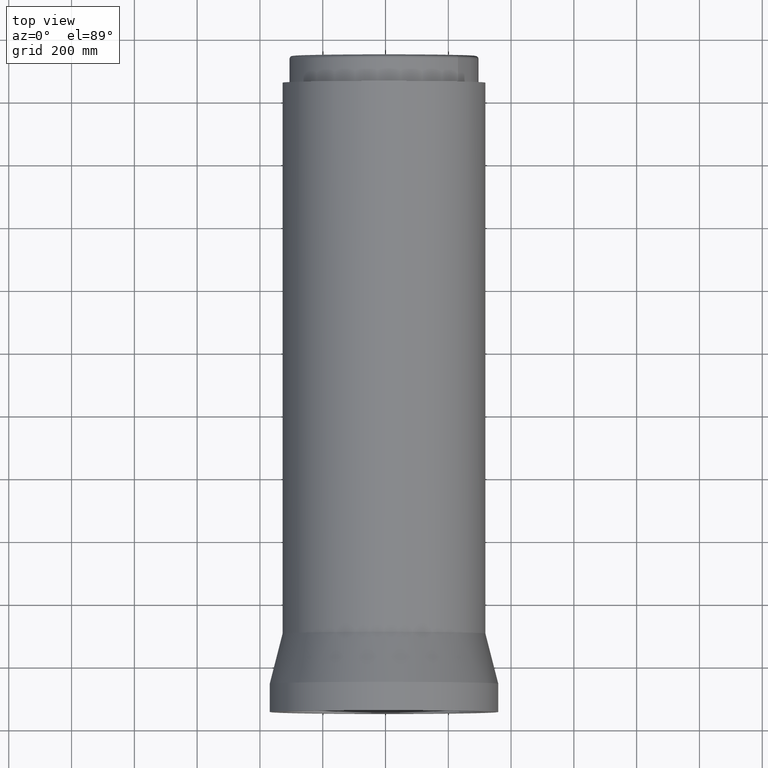
[diagram: clean part render]
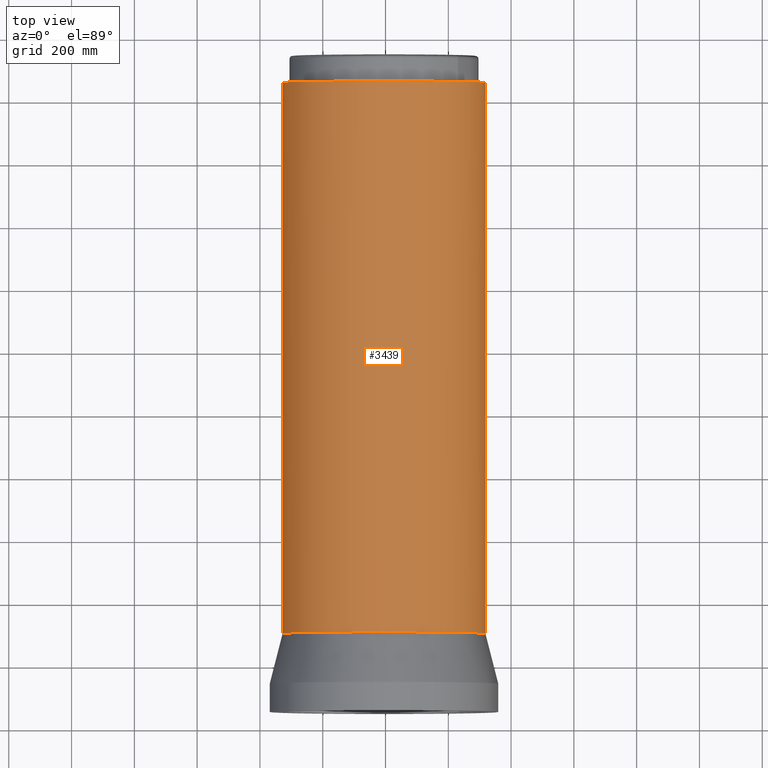
[diagram: same view with one face highlighted and labeled with its STEP entity id]
A machine part, top view. The second image highlights one B-rep face of the part: STEP entity #3439.
In plain terms, the highlighted face is a freeform B-spline surface patch.
Its self-contained STEP definition (entity closure, byte-faithful):
#83 = CARTESIAN_POINT ( 'NONE',  ( -243.5340322323569922, -213.2569484143310206, 1329.999355471835088 ) ) ;
#115 = CARTESIAN_POINT ( 'NONE',  ( 323.0000000000000000, -21.40913129544014382, 744.9987109436699484 ) ) ;
#128 = CARTESIAN_POINT ( 'NONE',  ( -72.32163776227345409, -314.8233503759747691, 159.9979707327578922 ) ) ;
#182 = CARTESIAN_POINT ( 'NONE',  ( 7.709899913104102609, -322.9312209362329895, 159.9997273834592306 ) ) ;
#192 = CARTESIAN_POINT ( 'NONE',  ( -290.3735948414009158, -143.0143971439257768, 159.9980664155050079 ) ) ;
#262 = EDGE_CURVE ( 'NONE', #9677, #22225, #9416, .T. ) ;
#280 = CARTESIAN_POINT ( 'NONE',  ( 306.6660101142015833, -102.0625040144014122, 1915.000000000000000 ) ) ;
#282 = CARTESIAN_POINT ( 'NONE',  ( 113.0296214979986757, -302.6323614580472281, 159.9999999999999432 ) ) ;
#303 = CARTESIAN_POINT ( 'NONE',  ( -243.5340322323569922, -213.2569484143310206, 159.9980664155050079 ) ) ;
#316 = ORIENTED_EDGE ( 'NONE', *, *, #262, .F. ) ;
#346 = B_SPLINE_CURVE_WITH_KNOTS ( 'NONE', 3,
 ( #7447, #14657, #9667, #16739, #11519, #14548 ),
 .UNSPECIFIED., .F., .F.,
 ( 4, 2, 4 ),
 ( 1.867534324542100110, 1.902142855546733680, 1.936751386551367471 ),
 .UNSPECIFIED. ) ;
#397 = CARTESIAN_POINT ( 'NONE',  ( 267.5070683133881744, -181.1870672075436062, 159.9970059069285071 ) ) ;
#406 = CARTESIAN_POINT ( 'NONE',  ( 13.51000980363555648, -322.7233417395834749, 159.9991968739813331 ) ) ;
#416 = CARTESIAN_POINT ( 'NONE',  ( -196.7600408490365851, -257.0226832244281923, 1915.000000000000000 ) ) ;
#430 = VERTEX_POINT ( 'NONE', #13123 ) ;
#450 = CARTESIAN_POINT ( 'NONE',  ( 323.0000000000000000, -9.068911159211503733E-14, 159.9980664155050079 ) ) ;
#521 = CARTESIAN_POINT ( 'NONE',  ( -196.7600408490365851, -257.0226832244281923, 744.9987109436699484 ) ) ;
#677 = VERTEX_POINT ( 'NONE', #2569 ) ;
#683 = EDGE_CURVE ( 'NONE', #7259, #8118, #13577, .T. ) ;
#748 = CARTESIAN_POINT ( 'NONE',  ( -320.8728413778999311, -42.61212307398756849, 1329.999355471835088 ) ) ;
#764 = DIRECTION ( 'NONE',  ( 1.000000000000000000, 5.329070518200752183E-15, 0.0000000000000000000 ) ) ;
#836 = CARTESIAN_POINT ( 'NONE',  ( 321.6395527800746663, -30.59814147421722552, 159.9974290749135832 ) ) ;
#918 = CARTESIAN_POINT ( 'NONE',  ( 0.0000000000000000000, 0.0000000000000000000, 1915.000000000000000 ) ) ;
#950 = AXIS2_PLACEMENT_3D ( 'NONE', #15944, #12339, #17787 ) ;
#954 = CARTESIAN_POINT ( 'NONE',  ( 161.4918332046295291, -279.8362434719057319, 159.9992026377213392 ) ) ;
#1036 = DIRECTION ( 'NONE',  ( 1.000000000000000000, 0.0000000000000000000, 0.0000000000000000000 ) ) ;
#1114 = CARTESIAN_POINT ( 'NONE',  ( -312.0008254233922571, -83.59638175438200847, 159.9991770018956743 ) ) ;
#1239 = CARTESIAN_POINT ( 'NONE',  ( 213.2569484171866634, -243.5340322298582123, 744.9987109436699484 ) ) ;
#1321 = ORIENTED_EDGE ( 'NONE', *, *, #4092, .T. ) ;
#1355 = CARTESIAN_POINT ( 'NONE',  ( 179.1994971339306062, -268.7322017300818402, 744.9987109436697210 ) ) ;
#1398 = ORIENTED_EDGE ( 'NONE', *, *, #17131, .T. ) ;
#1425 = CARTESIAN_POINT ( 'NONE',  ( -228.3954903234047435, -228.3954903231049514, 1915.000000000000000 ) ) ;
#1476 = CARTESIAN_POINT ( 'NONE',  ( 179.1994971339305778, -268.7322017300818970, 1915.000000000000000 ) ) ;
#1573 = CARTESIAN_POINT ( 'NONE',  ( -310.9782097825565756, -87.32327564873503434, 159.9995918787683706 ) ) ;
#1588 = CARTESIAN_POINT ( 'NONE',  ( 42.61212307773088526, -320.8728413774020396, 744.9987109436699484 ) ) ;
#1637 = CARTESIAN_POINT ( 'NONE',  ( -102.2007865244672473, -306.6253833656268739, 1915.000000000000000 ) ) ;
#1703 = CARTESIAN_POINT ( 'NONE',  ( 63.30918256711930070, -316.7355417733130594, 1329.999355471835088 ) ) ;
#1800 = CARTESIAN_POINT ( 'NONE',  ( -168.0858894611942560, -275.9271201318906037, 159.9983108626466333 ) ) ;
#1811 = ORIENTED_EDGE ( 'NONE', *, *, #21593, .T. ) ;
#1816 = CARTESIAN_POINT ( 'NONE',  ( -84.00624204926040761, -312.5982421711733537, 1915.000000000000000 ) ) ;
#1905 = CARTESIAN_POINT ( 'NONE',  ( 282.5798146565998081, -156.4655011245268668, 159.9997980712088008 ) ) ;
#1922 = CARTESIAN_POINT ( 'NONE',  ( -290.3735948414009158, -143.0143971439257768, 744.9987109436699484 ) ) ;
#1952 = CARTESIAN_POINT ( 'NONE',  ( 257.0226832267231885, -196.7600408460376116, 159.9980664155050079 ) ) ;
#1991 = CARTESIAN_POINT ( 'NONE',  ( -239.0201059827531935, -217.3875215555653710, 159.9989982209933430 ) ) ;
#2018 = CARTESIAN_POINT ( 'NONE',  ( -205.7987016950220323, -249.0685278907156430, 159.9974292432548282 ) ) ;
#2026 = CARTESIAN_POINT ( 'NONE',  ( 76.26548870823870629, -313.9608770373025664, 159.9983130880056592 ) ) ;
#2034 = CARTESIAN_POINT ( 'NONE',  ( -228.3954903219077721, -228.3954903246018375, 1915.000000000000000 ) ) ;
#2066 = CARTESIAN_POINT ( 'NONE',  ( 312.5982421721483320, -84.00624204563658282, 744.9987109436700621 ) ) ;
#2123 = EDGE_CURVE ( 'NONE', #3484, #430, #9996, .T. ) ;
#2125 = CIRCLE ( 'NONE', #6935, 323.0000000000000000 ) ;
#2150 = CARTESIAN_POINT ( 'NONE',  ( -143.0143971405650234, -290.3735948430560256, 1329.999355471835088 ) ) ;
#2181 = CARTESIAN_POINT ( 'NONE',  ( 316.7355417755220515, -63.30918255606890455, 744.9987109436700621 ) ) ;
#2257 = CARTESIAN_POINT ( 'NONE',  ( -161.6389534063235658, -280.4417202440712913, 744.9987109436699484 ) ) ;
#2290 = CARTESIAN_POINT ( 'NONE',  ( 316.7355417755220515, -63.30918255606886191, 1329.999355471835315 ) ) ;
#2356 = AXIS2_PLACEMENT_3D ( 'NONE', #3781, #3897, #764 ) ;
#2413 = B_SPLINE_CURVE_WITH_KNOTS ( 'NONE', 3,
 ( #5376, #12457, #3750, #19533, #18018, #3642, #397, #12797, #10723, #19761, #17797, #3970, #1905, #8979 ),
 .UNSPECIFIED., .F., .F.,
 ( 4, 2, 2, 2, 2, 2, 4 ),
 ( 0.7606041070042824925, 0.7836959005980191906, 0.8067876941917559996, 0.8298794877854926977, 0.8414253845823611577, 0.8471983329807953877, 0.8529712813792297288 ),
 .UNSPECIFIED. ) ;
#2450 = CARTESIAN_POINT ( 'NONE',  ( 102.0316606199088767, -306.6750717574353757, 1915.000000000000000 ) ) ;
#2480 = CARTESIAN_POINT ( 'NONE',  ( -316.7355417740493522, -63.30918256343567663, 1915.000000000000000 ) ) ;
#2569 = CARTESIAN_POINT ( 'NONE',  ( -154.7609259190186606, -283.5102393365855278, 1915.000000000000000 ) ) ;
#2664 = EDGE_CURVE ( 'NONE', #6538, #14496, #3614, .T. ) ;
#2802 = CARTESIAN_POINT ( 'NONE',  ( 180.9580275946989047, -267.6607252585141623, 159.9970241236020740 ) ) ;
#2832 = CARTESIAN_POINT ( 'NONE',  ( -306.4515880170426385, -104.1986879638669166, 1329.999355471835088 ) ) ;
#2918 = CARTESIAN_POINT ( 'NONE',  ( 144.6225357798616358, -288.8706769934266845, 1915.000000000000227 ) ) ;
#2920 = CARTESIAN_POINT ( 'NONE',  ( 199.5524037607138723, -254.1009937758297212, 159.9968176868686385 ) ) ;
#3089 = CARTESIAN_POINT ( 'NONE',  ( 228.3954903272961587, -228.3954903192135077, 1915.000000000000000 ) ) ;
#3209 = CARTESIAN_POINT ( 'NONE',  ( 161.6389534128267655, -280.4417202403251395, 744.9987109436698347 ) ) ;
#3253 = CARTESIAN_POINT ( 'NONE',  ( -81.69690136500567235, -312.5036413108439319, 159.9989654859892596 ) ) ;
#3291 = ORIENTED_EDGE ( 'NONE', *, *, #15385, .T. ) ;
#3308 = ORIENTED_EDGE ( 'NONE', *, *, #12882, .T. ) ;
#3324 = CARTESIAN_POINT ( 'NONE',  ( 196.7600408550343616, -257.0226832198385978, 1329.999355471834861 ) ) ;
#3418 = CARTESIAN_POINT ( 'NONE',  ( -110.1515742334396890, -303.6505280211968056, 159.9999999999999147 ) ) ;
#3439 = ADVANCED_FACE ( 'NONE', ( #12733 ), #12458, .T. ) ;
#3440 = CARTESIAN_POINT ( 'NONE',  ( 123.6065425573505223, -298.4125914277910852, 159.9980664155050079 ) ) ;
#3484 = VERTEX_POINT ( 'NONE', #15254 ) ;
#3549 = CARTESIAN_POINT ( 'NONE',  ( 228.3954903272961587, -228.3954903192135077, 1329.999355471835088 ) ) ;
#3597 = ORIENTED_EDGE ( 'NONE', *, *, #16852, .T. ) ;
#3614 = B_SPLINE_CURVE_WITH_KNOTS ( 'NONE', 3,
 ( #7556, #3747, #21491, #17905, #16172, #282, #14543, #12794, #5595, #12678 ),
 .UNSPECIFIED., .F., .F.,
 ( 4, 2, 2, 2, 4 ),
 ( 1.613964769877639815, 1.622608600492521536, 1.631252431107403256, 1.648540092337166918, 1.683115414796693798 ),
 .UNSPECIFIED. ) ;
#3637 = CARTESIAN_POINT ( 'NONE',  ( 309.9045129504303304, -91.03951259182234423, 1915.000000000000000 ) ) ;
#3642 = CARTESIAN_POINT ( 'NONE',  ( 263.1258788166477984, -187.4915359307099720, 159.9966370379043212 ) ) ;
#3660 = CARTESIAN_POINT ( 'NONE',  ( -290.3735948414009158, -143.0143971439258053, 1329.999355471835088 ) ) ;
#3691 = CARTESIAN_POINT ( 'NONE',  ( 323.0000000000000000, -21.40913129544014382, 159.9980664155050079 ) ) ;
#3747 = CARTESIAN_POINT ( 'NONE',  ( 93.82964398256490313, -309.0847855210729449, 159.9999999999999716 ) ) ;
#3750 = CARTESIAN_POINT ( 'NONE',  ( 239.0842331553477607, -217.3170576856385026, 159.9989873894047889 ) ) ;
#3766 = CARTESIAN_POINT ( 'NONE',  ( -179.1994971276800754, -268.7322017342497134, 1329.999355471835088 ) ) ;
#3781 = CARTESIAN_POINT ( 'NONE',  ( 0.0000000000000000000, 0.0000000000000000000, 1915.000000000000000 ) ) ;
#3798 = CARTESIAN_POINT ( 'NONE',  ( 320.8728413788957141, -42.61212306650123338, 159.9980664155050931 ) ) ;
#3880 = CARTESIAN_POINT ( 'NONE',  ( -104.1986879603200720, -306.4515880182486853, 1915.000000000000000 ) ) ;
#3897 = DIRECTION ( 'NONE',  ( -0.0000000000000000000, -0.0000000000000000000, -1.000000000000000000 ) ) ;
#3914 = CARTESIAN_POINT ( 'NONE',  ( 323.0000000000000000, -9.063930161978817068E-14, 1915.000000000000000 ) ) ;
#3966 = CARTESIAN_POINT ( 'NONE',  ( 289.0845548323447360, -144.5485571044935682, 1914.999999999999773 ) ) ;
#3970 = CARTESIAN_POINT ( 'NONE',  ( 281.6337657898561133, -158.1620896532919289, 159.9995901409108683 ) ) ;
#3989 = CARTESIAN_POINT ( 'NONE',  ( -104.1986879603200720, -306.4515880182486853, 1329.999355471835088 ) ) ;
#4023 = CARTESIAN_POINT ( 'NONE',  ( 316.7355417755219946, -63.30918255606890455, 159.9980664155050647 ) ) ;
#4092 = EDGE_CURVE ( 'NONE', #6436, #14980, #19181, .T. ) ;
#4100 = CARTESIAN_POINT ( 'NONE',  ( -323.0000000000000568, -21.40913128417235356, 1915.000000000000000 ) ) ;
#4166 = CARTESIAN_POINT ( 'NONE',  ( -309.9045129490179988, -91.03951259663003270, 1915.000000000000000 ) ) ;
#4214 = CARTESIAN_POINT ( 'NONE',  ( -306.4515880170426385, -104.1986879638669166, 1915.000000000000000 ) ) ;
#4256 = CARTESIAN_POINT ( 'NONE',  ( 228.3954903233501170, -228.3954903231595495, 160.0000000000000568 ) ) ;
#4264 = CARTESIAN_POINT ( 'NONE',  ( -228.3954903234220808, -228.3954903230875004, 160.0000000000000568 ) ) ;
#4366 = AXIS2_PLACEMENT_3D ( 'NONE', #6236, #16926, #11813 ) ;
#4448 = CARTESIAN_POINT ( 'NONE',  ( -316.7355417740493522, -63.30918256343567663, 1329.999355471835088 ) ) ;
#4562 = VERTEX_POINT ( 'NONE', #5335 ) ;
#4596 = CARTESIAN_POINT ( 'NONE',  ( 0.0000000000000000000, 0.0000000000000000000, 1915.000000000000000 ) ) ;
#4619 = VERTEX_POINT ( 'NONE', #12420 ) ;
#4633 = CARTESIAN_POINT ( 'NONE',  ( 309.9045129504303304, -91.03951259182234423, 1915.000000000000000 ) ) ;
#4805 = CARTESIAN_POINT ( 'NONE',  ( -314.8099448482217326, -72.37959197952868351, 159.9979764237759241 ) ) ;
#4821 = CARTESIAN_POINT ( 'NONE',  ( 3.810150709453192855E-09, -323.0000000000000568, 1915.000000000000000 ) ) ;
#4935 = CARTESIAN_POINT ( 'NONE',  ( 21.40913128800691823, -322.9999999997477858, 744.9987109436699484 ) ) ;
#4957 = ORIENTED_EDGE ( 'NONE', *, *, #7492, .T. ) ;
#4981 = CARTESIAN_POINT ( 'NONE',  ( -7.710193226899193952, -323.0000000000003411, 159.9999999999995453 ) ) ;
#5055 = CARTESIAN_POINT ( 'NONE',  ( 228.3954903272961587, -228.3954903192135077, 744.9987109436699484 ) ) ;
#5106 = CARTESIAN_POINT ( 'NONE',  ( -1.387778780781445676E-13, -323.0000000000000000, 1915.000000000000000 ) ) ;
#5125 = CARTESIAN_POINT ( 'NONE',  ( -249.0653228630799276, -205.8025028646958390, 159.9974297194901283 ) ) ;
#5171 = CARTESIAN_POINT ( 'NONE',  ( 196.7600408550343900, -257.0226832198385409, 159.9980664155050079 ) ) ;
#5236 = CARTESIAN_POINT ( 'NONE',  ( -233.8038310865527762, -222.9871495599489037, 159.9999999999999147 ) ) ;
#5256 = CARTESIAN_POINT ( 'NONE',  ( 294.0586606733986059, -134.1278910201395718, 1914.999999999999545 ) ) ;
#5278 = CARTESIAN_POINT ( 'NONE',  ( -293.9726909086467117, -134.3162185680046719, 1914.999999999999773 ) ) ;
#5280 = CARTESIAN_POINT ( 'NONE',  ( 3.810150709453192855E-09, -323.0000000000000568, 1329.999355471835088 ) ) ;
#5335 = CARTESIAN_POINT ( 'NONE',  ( -228.3954903234220808, -228.3954903230875004, 160.0000000000000568 ) ) ;
#5352 = EDGE_CURVE ( 'NONE', #15213, #16380, #15300, .T. ) ;
#5376 = CARTESIAN_POINT ( 'NONE',  ( 228.3954903233501170, -228.3954903231595495, 160.0000000000000568 ) ) ;
#5383 = CARTESIAN_POINT ( 'NONE',  ( 53.77090808142407496, -318.5862608505602225, 159.9966441738411902 ) ) ;
#5392 = CARTESIAN_POINT ( 'NONE',  ( -257.0226832221334803, -196.7600408520353312, 1329.999355471835088 ) ) ;
#5417 = EDGE_CURVE ( 'NONE', #10402, #7259, #346, .T. ) ;
#5425 = CARTESIAN_POINT ( 'NONE',  ( 257.0226832267231885, -196.7600408460376116, 744.9987109436699484 ) ) ;
#5460 = CARTESIAN_POINT ( 'NONE',  ( -264.2151162377963374, -185.8054075111343195, 159.9968316058779294 ) ) ;
#5493 = CARTESIAN_POINT ( 'NONE',  ( 3.851058740357961696, -322.9999999999999432, 159.9999999999995453 ) ) ;
#5503 = CARTESIAN_POINT ( 'NONE',  ( -213.2569484114585237, -243.5340322348726545, 744.9987109436699484 ) ) ;
#5537 = CARTESIAN_POINT ( 'NONE',  ( 312.5982421721482751, -84.00624204563658282, 1915.000000000000455 ) ) ;
#5595 = CARTESIAN_POINT ( 'NONE',  ( 144.6822988062549200, -289.0115533144355595, 159.9999999999999147 ) ) ;
#5616 = CARTESIAN_POINT ( 'NONE',  ( -257.0226832221334803, -196.7600408520353596, 744.9987109436699484 ) ) ;
#5648 = CARTESIAN_POINT ( 'NONE',  ( 268.7322017363338205, -179.1994971245547390, 744.9987109436699484 ) ) ;
#5706 = CARTESIAN_POINT ( 'NONE',  ( -190.5187633149131159, -260.8369210872027111, 159.9967132205882479 ) ) ;
#5725 = CARTESIAN_POINT ( 'NONE',  ( -268.7322017321658905, -179.1994971308051845, 1915.000000000000000 ) ) ;
#5807 = EDGE_CURVE ( 'NONE', #20361, #4562, #8094, .T. ) ;
#5839 = CARTESIAN_POINT ( 'NONE',  ( -213.2569484114585237, -243.5340322348726545, 1915.000000000000000 ) ) ;
#5871 = CARTESIAN_POINT ( 'NONE',  ( 257.0226832267231316, -196.7600408460376400, 1329.999355471835088 ) ) ;
#6152 = CARTESIAN_POINT ( 'NONE',  ( 154.7609259165818401, -283.5102393379157206, 1915.000000000000000 ) ) ;
#6154 = CARTESIAN_POINT ( 'NONE',  ( 154.7609258961071532, -283.5102393490923305, 160.0000000000000568 ) ) ;
#6214 = EDGE_CURVE ( 'NONE', #430, #11761, #10329, .T. ) ;
#6236 = CARTESIAN_POINT ( 'NONE',  ( 0.0000000000000000000, 0.0000000000000000000, 1915.000000000000000 ) ) ;
#6298 = CARTESIAN_POINT ( 'NONE',  ( -320.8728413778999311, -42.61212307398756849, 159.9980664155050079 ) ) ;
#6382 = CARTESIAN_POINT ( 'NONE',  ( 312.0629662055042104, -83.69271905189941663, 159.9992037847752329 ) ) ;
#6384 = CARTESIAN_POINT ( 'NONE',  ( 205.5555509110762955, -249.2715101758859646, 159.9973997194227877 ) ) ;
#6436 = VERTEX_POINT ( 'NONE', #13090 ) ;
#6498 = CARTESIAN_POINT ( 'NONE',  ( 225.6718937468518504, -231.1190868996601750, 159.9999999999998010 ) ) ;
#6538 = VERTEX_POINT ( 'NONE', #21789 ) ;
#6545 = CARTESIAN_POINT ( 'NONE',  ( 91.03951260336701523, -309.9045129470388815, 1915.000000000000000 ) ) ;
#6555 = CARTESIAN_POINT ( 'NONE',  ( 84.00624205650770193, -312.5982421692239654, 159.9980664155050079 ) ) ;
#6671 = CARTESIAN_POINT ( 'NONE',  ( 104.1986879674141306, -306.4515880158365349, 1915.000000000000000 ) ) ;
#6716 = EDGE_CURVE ( 'NONE', #10982, #4619, #16611, .T. ) ;
#6769 = CARTESIAN_POINT ( 'NONE',  ( -313.9251764612020565, -76.12572388040763371, 159.9983611069635288 ) ) ;
#6786 = CARTESIAN_POINT ( 'NONE',  ( -42.61212307024462831, -320.8728413783977658, 744.9987109436699484 ) ) ;
#6827 = ORIENTED_EDGE ( 'NONE', *, *, #7839, .F. ) ;
#6878 = CARTESIAN_POINT ( 'NONE',  ( -112.8591854062597690, -302.6546754870259974, 159.9999999999999432 ) ) ;
#6899 = CARTESIAN_POINT ( 'NONE',  ( 243.5340322374056541, -213.2569484085688316, 1329.999355471835088 ) ) ;
#6924 = EDGE_CURVE ( 'NONE', #9677, #14610, #16244, .T. ) ;
#6935 = AXIS2_PLACEMENT_3D ( 'NONE', #22273, #8114, #8232 ) ;
#6969 = CARTESIAN_POINT ( 'NONE',  ( -267.5294879739016096, -181.0316750023209522, 159.9970773495768128 ) ) ;
#7013 = CARTESIAN_POINT ( 'NONE',  ( 143.0143971472869566, -290.3735948397456355, 1915.000000000000000 ) ) ;
#7048 = B_SPLINE_CURVE_WITH_KNOTS ( 'NONE', 3,
 ( #6154, #954, #11619, #2802, #9881, #2920, #6384, #10003, #17076, #15339, #6498, #13588 ),
 .UNSPECIFIED., .F., .F.,
 ( 4, 2, 2, 2, 2, 4 ),
 ( 0.6683344487512858922, 0.6914018633145350146, 0.7144692778777841369, 0.7375366924410332592, 0.7490703997226578759, 0.7606041070042824925 ),
 .UNSPECIFIED. ) ;
#7068 = CARTESIAN_POINT ( 'NONE',  ( -113.0858302604483470, -302.7744743392033229, 1914.999999999999773 ) ) ;
#7125 = CARTESIAN_POINT ( 'NONE',  ( -123.6065425504425264, -298.4125914306523555, 159.9980664155050079 ) ) ;
#7148 = ORIENTED_EDGE ( 'NONE', *, *, #5807, .T. ) ;
#7158 = CARTESIAN_POINT ( 'NONE',  ( 298.4125914320831043, -123.6065425469884502, 1915.000000000000000 ) ) ;
#7193 = CARTESIAN_POINT ( 'NONE',  ( -283.5102393390213251, -154.7609259145563101, 160.0000000000000568 ) ) ;
#7201 = B_SPLINE_CURVE_WITH_KNOTS ( 'NONE', 3,
 ( #12805, #5493, #182, #406, #10730, #14104, #18027, #14440, #7229, #5383, #12358, #2026, #7453, #9096 ),
 .UNSPECIFIED., .F., .F.,
 ( 4, 2, 2, 2, 2, 2, 4 ),
 ( 0.5071337196015228699, 0.5186671918426024597, 0.5244339279631422546, 0.5302006640836820495, 0.5532676085658412291, 0.5763345530480004086, 0.5994014975301595882 ),
 .UNSPECIFIED. ) ;
#7229 = CARTESIAN_POINT ( 'NONE',  ( 38.57144209203796237, -320.7814385106659643, 159.9968176725113835 ) ) ;
#7239 = CARTESIAN_POINT ( 'NONE',  ( -298.4125914292217772, -123.6065425538963609, 1915.000000000000000 ) ) ;
#7259 = VERTEX_POINT ( 'NONE', #12007 ) ;
#7270 = CARTESIAN_POINT ( 'NONE',  ( 290.3735948447113060, -143.0143971372039573, 159.9980664155050647 ) ) ;
#7351 = CARTESIAN_POINT ( 'NONE',  ( -268.7322017321658905, -179.1994971308052129, 744.9987109436699484 ) ) ;
#7383 = CARTESIAN_POINT ( 'NONE',  ( 320.8728413788957710, -42.61212306650123338, 744.9987109436700621 ) ) ;
#7447 = CARTESIAN_POINT ( 'NONE',  ( 283.5102393370715390, -154.7609259181284358, 160.0000000000000568 ) ) ;
#7453 = CARTESIAN_POINT ( 'NONE',  ( 83.68293590022203432, -312.0658404493016178, 159.9992027245177155 ) ) ;
#7464 = CARTESIAN_POINT ( 'NONE',  ( -196.7600408490365851, -257.0226832244281923, 159.9980664155050079 ) ) ;
#7492 = EDGE_CURVE ( 'NONE', #14980, #22225, #21057, .T. ) ;
#7498 = CARTESIAN_POINT ( 'NONE',  ( 306.4515880194549595, -104.1986879567731137, 1329.999355471835315 ) ) ;
#7503 = DIRECTION ( 'NONE',  ( -0.0000000000000000000, -0.0000000000000000000, -1.000000000000000000 ) ) ;
#7531 = ORIENTED_EDGE ( 'NONE', *, *, #5417, .T. ) ;
#7556 = CARTESIAN_POINT ( 'NONE',  ( 91.03951259450126088, -309.9045129496432764, 160.0000000000000568 ) ) ;
#7574 = CARTESIAN_POINT ( 'NONE',  ( -243.5340322323569922, -213.2569484143310206, 744.9987109436699484 ) ) ;
#7609 = CARTESIAN_POINT ( 'NONE',  ( 320.8728413788957710, -42.61212306650115522, 1329.999355471835315 ) ) ;
#7806 = CARTESIAN_POINT ( 'NONE',  ( -323.0000000000000568, 2.027005098617451023E-13, 744.9987109436699484 ) ) ;
#7839 = EDGE_CURVE ( 'NONE', #9216, #4619, #8306, .T. ) ;
#7946 = CARTESIAN_POINT ( 'NONE',  ( -283.5102393390213251, -154.7609259145563101, 160.0000000000000568 ) ) ;
#7977 = DIRECTION ( 'NONE',  ( -0.0000000000000000000, -0.0000000000000000000, -1.000000000000000000 ) ) ;
#8044 = CARTESIAN_POINT ( 'NONE',  ( -316.7355417740493522, -63.30918256343567663, 744.9987109436699484 ) ) ;
#8094 = B_SPLINE_CURVE_WITH_KNOTS ( 'NONE', 3,
 ( #7193, #12432, #10697, #16038, #6969, #5460, #17882, #21132, #13951, #21019, #5125, #1991, #5236, #4264 ),
 .UNSPECIFIED., .F., .F.,
 ( 4, 2, 2, 2, 2, 2, 4 ),
 ( 0.1611730099343354206, 0.1842254447114750893, 0.1957516621000449653, 0.2015147707943299449, 0.2072778794886149523, 0.2303303142657548430, 0.2533827490428947060 ),
 .UNSPECIFIED. ) ;
#8114 = DIRECTION ( 'NONE',  ( -0.0000000000000000000, -0.0000000000000000000, -1.000000000000000000 ) ) ;
#8118 = VERTEX_POINT ( 'NONE', #10228 ) ;
#8130 = CARTESIAN_POINT ( 'NONE',  ( 313.9642366314333231, -76.25667243460497957, 159.9983110435858293 ) ) ;
#8232 = DIRECTION ( 'NONE',  ( 1.000000000000000000, 0.0000000000000000000, 0.0000000000000000000 ) ) ;
#8247 = CARTESIAN_POINT ( 'NONE',  ( 323.0000000000000000, -9.068911213919189264E-14, 160.0000000000000568 ) ) ;
#8304 = CARTESIAN_POINT ( 'NONE',  ( 179.1994971339306062, -268.7322017300818402, 159.9980664155050079 ) ) ;
#8306 = B_SPLINE_CURVE_WITH_KNOTS ( 'NONE', 3,
 ( #21508, #10737, #19886, #5278, #19438, #17701 ),
 .UNSPECIFIED., .F., .F.,
 ( 4, 2, 4 ),
 ( 0.09197922713279811646, 0.1265761185503089803, 0.1611730099678198580 ),
 .UNSPECIFIED. ) ;
#8331 = AXIS2_PLACEMENT_3D ( 'NONE', #16423, #9007, #14684 ) ;
#8421 = CARTESIAN_POINT ( 'NONE',  ( 143.0143971472869566, -290.3735948397456355, 1329.999355471835088 ) ) ;
#8464 = ORIENTED_EDGE ( 'NONE', *, *, #6214, .T. ) ;
#8537 = CARTESIAN_POINT ( 'NONE',  ( 161.6389534128267371, -280.4417202403251963, 1329.999355471834861 ) ) ;
#8629 = CARTESIAN_POINT ( 'NONE',  ( -116.9078859084053903, -301.1034767279799098, 159.9999999999999147 ) ) ;
#8647 = EDGE_CURVE ( 'NONE', #677, #22018, #18545, .T. ) ;
#8652 = CARTESIAN_POINT ( 'NONE',  ( 3.810150709453192855E-09, -323.0000000000000568, 744.9987109436699484 ) ) ;
#8765 = CARTESIAN_POINT ( 'NONE',  ( 42.61212307773090657, -320.8728413774020964, 1329.999355471835088 ) ) ;
#8791 = B_SPLINE_CURVE_WITH_KNOTS ( 'NONE', 3,
 ( #13483, #20783, #13945, #12089, #13595, #15688 ),
 .UNSPECIFIED., .F., .F.,
 ( 4, 2, 4 ),
 ( 1.106562396404886739, 1.141161777075638817, 1.175761157746390673 ),
 .UNSPECIFIED. ) ;
#8803 = CIRCLE ( 'NONE', #2356, 323.0000000000000000 ) ;
#8882 = CARTESIAN_POINT ( 'NONE',  ( -196.7600408490365851, -257.0226832244281923, 1329.999355471835088 ) ) ;
#8915 = CARTESIAN_POINT ( 'NONE',  ( 306.4515880194549027, -104.1986879567729716, 159.9980664155050647 ) ) ;
#8938 = CARTESIAN_POINT ( 'NONE',  ( -91.03951259186324307, -309.9045129504183365, 1915.000000000000000 ) ) ;
#8979 = CARTESIAN_POINT ( 'NONE',  ( 283.5102393370715390, -154.7609259181284358, 160.0000000000000568 ) ) ;
#8995 = CARTESIAN_POINT ( 'NONE',  ( -123.6065425504425264, -298.4125914306523555, 744.9987109436699484 ) ) ;
#9007 = DIRECTION ( 'NONE',  ( -0.0000000000000000000, -0.0000000000000000000, -1.000000000000000000 ) ) ;
#9088 = CARTESIAN_POINT ( 'NONE',  ( -177.8097726252534869, -269.6812297751718575, 159.9973397416940202 ) ) ;
#9096 = CARTESIAN_POINT ( 'NONE',  ( 91.03951259450126088, -309.9045129496432764, 160.0000000000000568 ) ) ;
#9105 = CARTESIAN_POINT ( 'NONE',  ( -228.3954903219077721, -228.3954903246018375, 159.9980664155050079 ) ) ;
#9138 = CARTESIAN_POINT ( 'NONE',  ( 298.4125914320831612, -123.6065425469885781, 744.9987109436700621 ) ) ;
#9216 = VERTEX_POINT ( 'NONE', #4166 ) ;
#9222 = CARTESIAN_POINT ( 'NONE',  ( -143.0143971405650234, -290.3735948430560256, 159.9980664155050079 ) ) ;
#9333 = CARTESIAN_POINT ( 'NONE',  ( -123.6065425504425264, -298.4125914306523555, 1329.999355471835088 ) ) ;
#9367 = CARTESIAN_POINT ( 'NONE',  ( 280.4417202459445093, -161.6389534030718949, 744.9987109436699484 ) ) ;
#9416 = B_SPLINE_CURVE_WITH_KNOTS ( 'NONE', 3,
 ( #16607, #2450, #11505, #22173, #11617, #2918, #14872, #6152 ),
 .UNSPECIFIED., .F., .F.,
 ( 4, 2, 2, 4 ),
 ( 0.5994014974033362586, 0.6338679729113959604, 0.6511012106654258114, 0.6683344484194556623 ),
 .UNSPECIFIED. ) ;
#9562 = CARTESIAN_POINT ( 'NONE',  ( -312.5982421701987164, -84.00624205288382029, 744.9987109436699484 ) ) ;
#9652 = CARTESIAN_POINT ( 'NONE',  ( 320.8212555647122031, -38.24928197386331874, 159.9968319972103643 ) ) ;
#9667 = CARTESIAN_POINT ( 'NONE',  ( 293.9778452967808562, -134.3049402002841646, 159.9999999999999432 ) ) ;
#9677 = VERTEX_POINT ( 'NONE', #6545 ) ;
#9845 = CIRCLE ( 'NONE', #950, 323.0000000000000000 ) ;
#9881 = CARTESIAN_POINT ( 'NONE',  ( 187.2536466086244218, -263.2956084707952300, 159.9966441695918604 ) ) ;
#9943 = DIRECTION ( 'NONE',  ( 1.000000000000000000, 0.0000000000000000000, 0.0000000000000000000 ) ) ;
#9989 = VERTEX_POINT ( 'NONE', #4256 ) ;
#9996 = B_SPLINE_CURVE_WITH_KNOTS ( 'NONE', 3,
 ( #12235, #19189, #12569, #10386, #13977, #16058, #8629, #6878, #3418, #14315, #14093, #15835 ),
 .UNSPECIFIED., .F., .F.,
 ( 4, 2, 2, 2, 2, 4 ),
 ( 1.360373515443734638, 1.394840348125823137, 1.399148702211084005, 1.403457056296345096, 1.412073764466867276, 1.429307180807911415 ),
 .UNSPECIFIED. ) ;
#10003 = CARTESIAN_POINT ( 'NONE',  ( 214.3354388964369548, -241.6703107602973830, 159.9985833606164363 ) ) ;
#10010 = CARTESIAN_POINT ( 'NONE',  ( -323.0000000000000568, 8.549730770485736735E-14, 1915.000000000000000 ) ) ;
#10043 = CARTESIAN_POINT ( 'NONE',  ( -323.0000000000000000, -7.739220914754814551, 159.9999999999992895 ) ) ;
#10123 = CARTESIAN_POINT ( 'NONE',  ( -323.0000000000000568, 8.549730770485736735E-14, 1915.000000000000000 ) ) ;
#10158 = CARTESIAN_POINT ( 'NONE',  ( -322.9999999999999432, 0.0000000000000000000, 160.0000000000000568 ) ) ;
#10173 = CARTESIAN_POINT ( 'NONE',  ( 123.6065425573505223, -298.4125914277910852, 1915.000000000000000 ) ) ;
#10228 = CARTESIAN_POINT ( 'NONE',  ( 323.0000000000000000, -9.068911213919189264E-14, 160.0000000000000568 ) ) ;
#10237 = CARTESIAN_POINT ( 'NONE',  ( -323.0000000000000568, 2.027005098617451023E-13, 744.9988508873312867 ) ) ;
#10274 = CARTESIAN_POINT ( 'NONE',  ( -322.7224821252842162, -15.43971134328689665, 159.9989817769377680 ) ) ;
#10291 = CARTESIAN_POINT ( 'NONE',  ( 84.00624205650770193, -312.5982421692240223, 1329.999355471835088 ) ) ;
#10329 = B_SPLINE_CURVE_WITH_KNOTS ( 'NONE', 3,
 ( #19257, #19599, #19485, #12071, #3253, #13812, #128, #14048, #15670, #22857, #20880, #17524, #4981, #12187 ),
 .UNSPECIFIED., .F., .F.,
 ( 4, 2, 2, 2, 2, 2, 4 ),
 ( 0.4147691979967000342, 0.4205419805970014857, 0.4263147631973028817, 0.4378603283979057847, 0.4609514587991114798, 0.4840425892003171748, 0.5071337196015228699 ),
 .UNSPECIFIED. ) ;
#10342 = CARTESIAN_POINT ( 'NONE',  ( 323.0000000000000000, 0.0000000000000000000, 1915.000000000000000 ) ) ;
#10386 = CARTESIAN_POINT ( 'NONE',  ( -122.2900194362623125, -298.9580262141976732, 159.9999999999998863 ) ) ;
#10402 = VERTEX_POINT ( 'NONE', #22184 ) ;
#10409 = CARTESIAN_POINT ( 'NONE',  ( 228.3954903272961587, -228.3954903192135077, 159.9980664155050079 ) ) ;
#10430 = VERTEX_POINT ( 'NONE', #10123 ) ;
#10520 = CARTESIAN_POINT ( 'NONE',  ( 143.0143971472869566, -290.3735948397456355, 159.9980664155050079 ) ) ;
#10572 = CARTESIAN_POINT ( 'NONE',  ( -144.6751010858525888, -289.0154821164515511, 1915.000000000000000 ) ) ;
#10629 = CARTESIAN_POINT ( 'NONE',  ( -280.4417202421983006, -161.6389534095750093, 1329.999355471835088 ) ) ;
#10663 = CARTESIAN_POINT ( 'NONE',  ( 316.7355417755219946, -63.30918255606890455, 1915.000000000000455 ) ) ;
#10697 = CARTESIAN_POINT ( 'NONE',  ( -275.9247883610261169, -168.0899029847279280, 159.9983102869722700 ) ) ;
#10721 = B_SPLINE_CURVE_WITH_KNOTS ( 'NONE', 3,
 ( #10010, #15460, #10237, #11741 ),
 .UNSPECIFIED., .F., .F.,
 ( 4, 4 ),
 ( 0.0000000000000000000, 0.9164499862501320759 ),
 .UNSPECIFIED. ) ;
#10723 = CARTESIAN_POINT ( 'NONE',  ( 275.7824237340524860, -168.1911873254448437, 159.9983561270729524 ) ) ;
#10730 = CARTESIAN_POINT ( 'NONE',  ( 15.44535492997691684, -322.6365927156847988, 159.9989985390141953 ) ) ;
#10737 = CARTESIAN_POINT ( 'NONE',  ( -306.6268219260731485, -102.1958900515236763, 1915.000000000000000 ) ) ;
#10739 = CARTESIAN_POINT ( 'NONE',  ( -84.00624204926040761, -312.5982421711733537, 1329.999355471835088 ) ) ;
#10769 = CARTESIAN_POINT ( 'NONE',  ( 312.5982421721482751, -84.00624204563656861, 159.9980664155050363 ) ) ;
#10770 = CARTESIAN_POINT ( 'NONE',  ( 323.0000000000000000, 0.0000000000000000000, 1915.000000000000000 ) ) ;
#10846 = CARTESIAN_POINT ( 'NONE',  ( -213.2569484114585237, -243.5340322348726545, 1329.999355471835088 ) ) ;
#10877 = CARTESIAN_POINT ( 'NONE',  ( 306.4515880194549027, -104.1986879567729716, 1915.000000000000000 ) ) ;
#10900 = CARTESIAN_POINT ( 'NONE',  ( -154.7609259190186606, -283.5102393365855278, 1915.000000000000000 ) ) ;
#10959 = CARTESIAN_POINT ( 'NONE',  ( -298.4125914292217772, -123.6065425538963467, 159.9980664155050079 ) ) ;
#10982 = VERTEX_POINT ( 'NONE', #1425 ) ;
#11076 = CARTESIAN_POINT ( 'NONE',  ( -104.1986879603200720, -306.4515880182486853, 744.9987109436699484 ) ) ;
#11109 = CARTESIAN_POINT ( 'NONE',  ( 298.4125914320831612, -123.6065425469885781, 1329.999355471835315 ) ) ;
#11110 = CARTESIAN_POINT ( 'NONE',  ( 323.0000000000000000, -9.085462837676791897E-14, 744.9988558197391058 ) ) ;
#11186 = CARTESIAN_POINT ( 'NONE',  ( -323.0000000000000568, -21.40913128417233580, 744.9987109436699484 ) ) ;
#11272 = CARTESIAN_POINT ( 'NONE',  ( 318.2087168450873946, -55.46605084015173759, 159.9968323797290850 ) ) ;
#11418 = CARTESIAN_POINT ( 'NONE',  ( -320.8728413778999311, -42.61212307398756849, 744.9987109436699484 ) ) ;
#11505 = CARTESIAN_POINT ( 'NONE',  ( 112.8881544534294505, -302.8521830900240843, 1915.000000000000000 ) ) ;
#11519 = CARTESIAN_POINT ( 'NONE',  ( 306.6292048522702771, -102.1877792129568689, 159.9999999999998863 ) ) ;
#11533 = CARTESIAN_POINT ( 'NONE',  ( -323.0000000000000568, 2.027005098617451023E-13, 1329.999355471835088 ) ) ;
#11536 = B_SPLINE_CURVE_WITH_KNOTS ( 'NONE', 3,
 ( #14209, #16062, #12910, #2018, #16175, #14655, #5706, #19870, #21383, #21722, #9088, #1800, #21271, #14546 ),
 .UNSPECIFIED., .F., .F.,
 ( 4, 2, 2, 2, 2, 2, 4 ),
 ( 0.2533827490428947060, 0.2764347537309780334, 0.2994867584190614163, 0.3052497595910822481, 0.3110127607631030244, 0.3225387631071446881, 0.3455907677952279600 ),
 .UNSPECIFIED. ) ;
#11617 = CARTESIAN_POINT ( 'NONE',  ( 134.2378814375539378, -293.8401134509292092, 1915.000000000000000 ) ) ;
#11619 = CARTESIAN_POINT ( 'NONE',  ( 168.0771203333422932, -275.9310418704039876, 159.9983129508921422 ) ) ;
#11662 = EDGE_LOOP ( 'NONE', ( #3308, #11899, #16367, #3597, #7148, #1398, #19194, #8464, #14859, #14993, #3291, #16020, #7531, #19206, #22082, #14304, #17472, #1321, #4957, #316, #18487, #1811, #15187, #11672, #15667, #6827 ) ) ;
#11672 = ORIENTED_EDGE ( 'NONE', *, *, #12367, .T. ) ;
#11678 = DIRECTION ( 'NONE',  ( -0.0000000000000000000, -0.0000000000000000000, -1.000000000000000000 ) ) ;
#11680 = CARTESIAN_POINT ( 'NONE',  ( 154.7609259165818401, -283.5102393379157206, 1915.000000000000000 ) ) ;
#11741 = CARTESIAN_POINT ( 'NONE',  ( -322.9999999999999432, 0.0000000000000000000, 160.0000000000000568 ) ) ;
#11761 = VERTEX_POINT ( 'NONE', #13342 ) ;
#11813 = DIRECTION ( 'NONE',  ( 1.000000000000000000, 3.552713678800500929E-15, 0.0000000000000000000 ) ) ;
#11899 = ORIENTED_EDGE ( 'NONE', *, *, #16865, .T. ) ;
#11906 = CARTESIAN_POINT ( 'NONE',  ( -21.40913128038664226, -323.0000000002523848, 1329.999355471835088 ) ) ;
#12007 = CARTESIAN_POINT ( 'NONE',  ( 309.9045129499228324, -91.03951259354977310, 159.9999999999999432 ) ) ;
#12023 = CARTESIAN_POINT ( 'NONE',  ( -42.61212307024462831, -320.8728413783977658, 1329.999355471835088 ) ) ;
#12071 = CARTESIAN_POINT ( 'NONE',  ( -83.56840786588225001, -312.0083589657451171, 159.9991738873018505 ) ) ;
#12089 = CARTESIAN_POINT ( 'NONE',  ( -294.0534861294319739, -134.1392395165048299, 159.9999999999998863 ) ) ;
#12142 = CARTESIAN_POINT ( 'NONE',  ( 104.1986879674141306, -306.4515880158365349, 159.9980664155050079 ) ) ;
#12187 = CARTESIAN_POINT ( 'NONE',  ( 1.465494392505206633E-11, -322.9999999999999432, 160.0000000000000568 ) ) ;
#12235 = CARTESIAN_POINT ( 'NONE',  ( -154.7609259149579088, -283.5102393388021369, 160.0000000000000568 ) ) ;
#12256 = CARTESIAN_POINT ( 'NONE',  ( 213.2569484171866634, -243.5340322298581839, 1329.999355471835088 ) ) ;
#12339 = DIRECTION ( 'NONE',  ( -0.0000000000000000000, -0.0000000000000000000, -1.000000000000000000 ) ) ;
#12358 = CARTESIAN_POINT ( 'NONE',  ( 61.30947498771099191, -317.2210880628472296, 159.9970242156226163 ) ) ;
#12367 = EDGE_CURVE ( 'NONE', #677, #10982, #2125, .T. ) ;
#12368 = CARTESIAN_POINT ( 'NONE',  ( 104.1986879674141306, -306.4515880158365349, 744.9987109436699484 ) ) ;
#12415 = VERTEX_POINT ( 'NONE', #4633 ) ;
#12420 = CARTESIAN_POINT ( 'NONE',  ( -283.5102393362878388, -154.7609259195640448, 1915.000000000000000 ) ) ;
#12432 = CARTESIAN_POINT ( 'NONE',  ( -279.8404214362285529, -161.4841790059432185, 159.9992035444592204 ) ) ;
#12457 = CARTESIAN_POINT ( 'NONE',  ( 233.8484403975475345, -222.9425402489575276, 159.9999999999997158 ) ) ;
#12458 = B_SPLINE_SURFACE_WITH_KNOTS ( 'NONE', 3, 3, ( 
 ( #3914, #21432, #18069, #450 ),
 ( #18181, #19920, #115, #3691 ),
 ( #12619, #7609, #7383, #3798 ),
 ( #10663, #2290, #2181, #4023 ),
 ( #5537, #14366, #2066, #10769 ),
 ( #10877, #7498, #17955, #8915 ),
 ( #7158, #11109, #9138, #17845 ),
 ( #14256, #19698, #21319, #7270 ),
 ( #16224, #14484, #9367, #16445 ),
 ( #14707, #21545, #5648, #16334 ),
 ( #21771, #5871, #5425, #1952 ),
 ( #17130, #6899, #13999, #17247 ),
 ( #3089, #3549, #5055, #10409 ),
 ( #22583, #12256, #1239, #15514 ),
 ( #21067, #3324, #19212, #5171 ),
 ( #1476, #19328, #1355, #8304 ),
 ( #15397, #8537, #3209, #15627 ),
 ( #7013, #8421, #19441, #10520 ),
 ( #10173, #13766, #17480, #3440 ),
 ( #6671, #22464, #12368, #12142 ),
 ( #22927, #10291, #17594, #6555 ),
 ( #22812, #1703, #19093, #13647 ),
 ( #20835, #8765, #1588, #15857 ),
 ( #14113, #21173, #4935, #20719 ),
 ( #4821, #5280, #8652, #17363 ),
 ( #15743, #11906, #13881, #18975 ),
 ( #22697, #12023, #6786, #20949 ),
 ( #19995, #16302, #12815, #12588 ),
 ( #1816, #10739, #19889, #19779 ),
 ( #3880, #3989, #11076, #18149 ),
 ( #18036, #9333, #8995, #7125 ),
 ( #15970, #2150, #19663, #9222 ),
 ( #14452, #16411, #2257, #14225 ),
 ( #16081, #3766, #14672, #21511 ),
 ( #416, #8882, #521, #7464 ),
 ( #5839, #10846, #5503, #16192 ),
 ( #2034, #17924, #21627, #9105 ),
 ( #21288, #83, #7574, #303 ),
 ( #14565, #5392, #5616, #17813 ),
 ( #5725, #21737, #7351, #12698 ),
 ( #12925, #10629, #12476, #17704 ),
 ( #19551, #3660, #1922, #192 ),
 ( #7239, #14335, #21401, #10959 ),
 ( #4214, #2832, #13035, #13503 ),
 ( #20348, #16637, #9562, #22203 ),
 ( #2480, #4448, #8044, #13272 ),
 ( #16875, #748, #11418, #6298 ),
 ( #4100, #21850, #11186, #18491 ),
 ( #15024, #11533, #7806, #14901 ) ),
 .UNSPECIFIED., .F., .F., .F.,
 ( 4, 3, 3, 3, 3, 3, 3, 3, 3, 3, 3, 3, 3, 3, 3, 3, 4 ),
 ( 4, 4 ),
 ( -3.707811835340635298E-12, 0.03124999999652392640, 0.06249999999675566464, 0.09374999999698740982, 0.1249999999972191411, 0.1562499999974508724, 0.1874999999976826315, 0.2187499999979143628, 0.2499999999981460941, 0.2812499999983778531, 0.3124999999986095567, 0.3437499999988413157, 0.3749999999990730748, 0.4062499999993047783, 0.4374999999995365374, 0.4687499999997682965, 0.5000000000000000000 ),
 ( 0.0000000000000000000, 0.9164500958665769970 ),
 .UNSPECIFIED. ) ;
#12476 = CARTESIAN_POINT ( 'NONE',  ( -280.4417202421983006, -161.6389534095750378, 744.9987109436699484 ) ) ;
#12569 = CARTESIAN_POINT ( 'NONE',  ( -134.3340314553419717, -293.9682072831964774, 159.9999999999999716 ) ) ;
#12588 = CARTESIAN_POINT ( 'NONE',  ( -63.30918255975254283, -316.7355417747855881, 159.9980664155050079 ) ) ;
#12593 = CARTESIAN_POINT ( 'NONE',  ( -309.9045129487603276, -91.03951259750677139, 160.0000000000000568 ) ) ;
#12619 = CARTESIAN_POINT ( 'NONE',  ( 320.8728413788957141, -42.61212306650122628, 1915.000000000000455 ) ) ;
#12678 = CARTESIAN_POINT ( 'NONE',  ( 154.7609258961071532, -283.5102393490923305, 160.0000000000000568 ) ) ;
#12698 = CARTESIAN_POINT ( 'NONE',  ( -268.7322017321658905, -179.1994971308052129, 159.9980664155050079 ) ) ;
#12733 = FACE_OUTER_BOUND ( 'NONE', #11662, .T. ) ;
#12794 = CARTESIAN_POINT ( 'NONE',  ( 134.3341889151039936, -293.9644785640438158, 159.9999999999999147 ) ) ;
#12797 = CARTESIAN_POINT ( 'NONE',  ( 273.7542039492679464, -171.4724293315175601, 159.9979709789423339 ) ) ;
#12805 = CARTESIAN_POINT ( 'NONE',  ( 1.465494392505206633E-11, -322.9999999999999432, 160.0000000000000568 ) ) ;
#12815 = CARTESIAN_POINT ( 'NONE',  ( -63.30918255975254283, -316.7355417747855881, 744.9987109436699484 ) ) ;
#12882 = EDGE_CURVE ( 'NONE', #9216, #10430, #8803, .T. ) ;
#12901 = AXIS2_PLACEMENT_3D ( 'NONE', #14826, #7503, #20499 ) ;
#12910 = CARTESIAN_POINT ( 'NONE',  ( -217.3869523671629054, -239.0206904006710715, 159.9989981055384476 ) ) ;
#12925 = CARTESIAN_POINT ( 'NONE',  ( -280.4417202421983006, -161.6389534095750093, 1915.000000000000000 ) ) ;
#13035 = CARTESIAN_POINT ( 'NONE',  ( -306.4515880170426385, -104.1986879638669166, 744.9987109436699484 ) ) ;
#13090 = CARTESIAN_POINT ( 'NONE',  ( 283.5102393672226526, -154.7609258628937994, 1915.000000000000000 ) ) ;
#13123 = CARTESIAN_POINT ( 'NONE',  ( -91.03951259541206298, -309.9045129493757145, 160.0000000000000568 ) ) ;
#13272 = CARTESIAN_POINT ( 'NONE',  ( -316.7355417740493522, -63.30918256343567663, 159.9980664155050079 ) ) ;
#13342 = CARTESIAN_POINT ( 'NONE',  ( 1.465494392505206633E-11, -322.9999999999999432, 160.0000000000000568 ) ) ;
#13474 = CARTESIAN_POINT ( 'NONE',  ( 318.5361627802824955, -53.55373979649235849, 159.9967745619678681 ) ) ;
#13483 = CARTESIAN_POINT ( 'NONE',  ( -309.9045129487603276, -91.03951259750677139, 160.0000000000000568 ) ) ;
#13503 = CARTESIAN_POINT ( 'NONE',  ( -306.4515880170426385, -104.1986879638669166, 159.9980664155050079 ) ) ;
#13577 = B_SPLINE_CURVE_WITH_KNOTS ( 'NONE', 3,
 ( #16961, #6382, #8130, #15224, #22289, #11272, #13474, #20546, #18345, #9652, #836, #22406, #15450, #8247 ),
 .UNSPECIFIED., .F., .F.,
 ( 4, 2, 2, 2, 2, 2, 4 ),
 ( 0.9221444989844934659, 0.9451963780412928617, 0.9567223175696926152, 0.9624852873338923809, 0.9682482570980922576, 0.9913001361548917645, 1.014352015211691160 ),
 .UNSPECIFIED. ) ;
#13588 = CARTESIAN_POINT ( 'NONE',  ( 228.3954903233501170, -228.3954903231595495, 160.0000000000000568 ) ) ;
#13590 = EDGE_CURVE ( 'NONE', #14502, #8118, #17337, .T. ) ;
#13595 = CARTESIAN_POINT ( 'NONE',  ( -289.0805065654152486, -144.5559736957543464, 159.9999999999999147 ) ) ;
#13647 = CARTESIAN_POINT ( 'NONE',  ( 63.30918256711928649, -316.7355417733130025, 159.9980664155050079 ) ) ;
#13766 = CARTESIAN_POINT ( 'NONE',  ( 123.6065425573505223, -298.4125914277910852, 1329.999355471835088 ) ) ;
#13812 = CARTESIAN_POINT ( 'NONE',  ( -76.07647083176976821, -313.9372482534281517, 159.9983559133888207 ) ) ;
#13881 = CARTESIAN_POINT ( 'NONE',  ( -21.40913128038664226, -323.0000000002523848, 744.9987109436699484 ) ) ;
#13945 = CARTESIAN_POINT ( 'NONE',  ( -302.8451318507358110, -112.8964830182247283, 159.9999999999999432 ) ) ;
#13951 = CARTESIAN_POINT ( 'NONE',  ( -259.6828389737667067, -192.0887742393487656, 159.9967098059296404 ) ) ;
#13977 = CARTESIAN_POINT ( 'NONE',  ( -120.9459613077955140, -299.5043005690056361, 159.9999999999999432 ) ) ;
#13999 = CARTESIAN_POINT ( 'NONE',  ( 243.5340322374056541, -213.2569484085688032, 744.9987109436699484 ) ) ;
#14048 = CARTESIAN_POINT ( 'NONE',  ( -61.03379907267358817, -317.2753887223846618, 159.9970056591661489 ) ) ;
#14093 = CARTESIAN_POINT ( 'NONE',  ( -96.53806113752965246, -308.2890653483662504, 159.9999999999999147 ) ) ;
#14104 = CARTESIAN_POINT ( 'NONE',  ( 19.32003052389941899, -322.4278732961338392, 159.9985931351128556 ) ) ;
#14113 = CARTESIAN_POINT ( 'NONE',  ( 21.40913128800691823, -322.9999999997477858, 1915.000000000000000 ) ) ;
#14209 = CARTESIAN_POINT ( 'NONE',  ( -228.3954903234220808, -228.3954903230875004, 160.0000000000000568 ) ) ;
#14225 = CARTESIAN_POINT ( 'NONE',  ( -161.6389534063235658, -280.4417202440712913, 159.9980664155050079 ) ) ;
#14256 = CARTESIAN_POINT ( 'NONE',  ( 290.3735948447113060, -143.0143971372039289, 1915.000000000000000 ) ) ;
#14304 = ORIENTED_EDGE ( 'NONE', *, *, #22260, .T. ) ;
#14315 = CARTESIAN_POINT ( 'NONE',  ( -102.0035821312057749, -306.5244826343425188, 159.9999999999999432 ) ) ;
#14335 = CARTESIAN_POINT ( 'NONE',  ( -298.4125914292217772, -123.6065425538963609, 1329.999355471835088 ) ) ;
#14366 = CARTESIAN_POINT ( 'NONE',  ( 312.5982421721483320, -84.00624204563656861, 1329.999355471835315 ) ) ;
#14440 = CARTESIAN_POINT ( 'NONE',  ( 30.91054687384761124, -321.6114602949226082, 159.9973998198323670 ) ) ;
#14452 = CARTESIAN_POINT ( 'NONE',  ( -161.6389534063235658, -280.4417202440712913, 1915.000000000000000 ) ) ;
#14484 = CARTESIAN_POINT ( 'NONE',  ( 280.4417202459444525, -161.6389534030719233, 1329.999355471835088 ) ) ;
#14496 = VERTEX_POINT ( 'NONE', #21117 ) ;
#14502 = VERTEX_POINT ( 'NONE', #10342 ) ;
#14543 = CARTESIAN_POINT ( 'NONE',  ( 118.4065548858011994, -300.5687498495115619, 159.9999999999999147 ) ) ;
#14546 = CARTESIAN_POINT ( 'NONE',  ( -154.7609259149579088, -283.5102393388021369, 160.0000000000000568 ) ) ;
#14548 = CARTESIAN_POINT ( 'NONE',  ( 309.9045129499228324, -91.03951259354977310, 159.9999999999999432 ) ) ;
#14565 = CARTESIAN_POINT ( 'NONE',  ( -257.0226832221334803, -196.7600408520353312, 1915.000000000000000 ) ) ;
#14610 = VERTEX_POINT ( 'NONE', #5106 ) ;
#14655 = CARTESIAN_POINT ( 'NONE',  ( -192.0777802699102494, -259.6909791182184790, 159.9967097529104763 ) ) ;
#14657 = CARTESIAN_POINT ( 'NONE',  ( 289.0218340305224274, -144.6634641252949791, 159.9999999999999432 ) ) ;
#14672 = CARTESIAN_POINT ( 'NONE',  ( -179.1994971276800754, -268.7322017342497134, 744.9987109436699484 ) ) ;
#14684 = DIRECTION ( 'NONE',  ( 1.000000000000000000, 0.0000000000000000000, 0.0000000000000000000 ) ) ;
#14707 = CARTESIAN_POINT ( 'NONE',  ( 268.7322017363337636, -179.1994971245547106, 1915.000000000000000 ) ) ;
#14826 = CARTESIAN_POINT ( 'NONE',  ( 0.0000000000000000000, 0.0000000000000000000, 1915.000000000000000 ) ) ;
#14859 = ORIENTED_EDGE ( 'NONE', *, *, #20525, .T. ) ;
#14872 = CARTESIAN_POINT ( 'NONE',  ( 149.7323897760487625, -286.2550135867571726, 1915.000000000000455 ) ) ;
#14901 = CARTESIAN_POINT ( 'NONE',  ( -323.0000000000000568, 2.027005098617451023E-13, 159.9980664155050079 ) ) ;
#14980 = VERTEX_POINT ( 'NONE', #20746 ) ;
#14993 = ORIENTED_EDGE ( 'NONE', *, *, #2664, .T. ) ;
#15024 = CARTESIAN_POINT ( 'NONE',  ( -323.0000000000000568, 2.027005098617451023E-13, 1915.000000000000000 ) ) ;
#15118 = AXIS2_PLACEMENT_3D ( 'NONE', #4596, #11678, #9943 ) ;
#15187 = ORIENTED_EDGE ( 'NONE', *, *, #8647, .F. ) ;
#15213 = VERTEX_POINT ( 'NONE', #22291 ) ;
#15224 = CARTESIAN_POINT ( 'NONE',  ( 316.4232334888865807, -64.96624690016389536, 159.9973399969558443 ) ) ;
#15254 = CARTESIAN_POINT ( 'NONE',  ( -154.7609259149579088, -283.5102393388021369, 160.0000000000000568 ) ) ;
#15300 = B_SPLINE_CURVE_WITH_KNOTS ( 'NONE', 3,
 ( #10158, #10043, #10274, #17348, #15612, #15381, #17232, #4805, #6769, #17462, #1114, #1573, #17116, #18959 ),
 .UNSPECIFIED., .F., .F.,
 ( 4, 2, 2, 2, 2, 2, 4 ),
 ( 0.0000000000000000000, 0.02299480678325390576, 0.04598961356650781152, 0.06898442034976171033, 0.08048182374138865280, 0.08623052543720213792, 0.09197922713301562303 ),
 .UNSPECIFIED. ) ;
#15339 = CARTESIAN_POINT ( 'NONE',  ( 222.8940744100761151, -233.7996032428528679, 159.9997272839137565 ) ) ;
#15381 = CARTESIAN_POINT ( 'NONE',  ( -318.6208894204616513, -53.56339632596193212, 159.9966391512825794 ) ) ;
#15385 = EDGE_CURVE ( 'NONE', #14496, #9989, #7048, .T. ) ;
#15397 = CARTESIAN_POINT ( 'NONE',  ( 161.6389534128267371, -280.4417202403251963, 1915.000000000000000 ) ) ;
#15450 = CARTESIAN_POINT ( 'NONE',  ( 323.0000000000000000, -7.648393711282068352, 159.9999999999999147 ) ) ;
#15460 = CARTESIAN_POINT ( 'NONE',  ( -323.0000000000000568, 2.027005098617451023E-13, 1329.999425443665586 ) ) ;
#15514 = CARTESIAN_POINT ( 'NONE',  ( 213.2569484171866634, -243.5340322298582123, 159.9980664155050079 ) ) ;
#15599 = CARTESIAN_POINT ( 'NONE',  ( -91.03951259186324307, -309.9045129504183365, 1915.000000000000000 ) ) ;
#15612 = CARTESIAN_POINT ( 'NONE',  ( -320.8029381541017528, -38.38948191293528112, 159.9968273329899091 ) ) ;
#15627 = CARTESIAN_POINT ( 'NONE',  ( 161.6389534128267655, -280.4417202403251395, 159.9980664155050079 ) ) ;
#15667 = ORIENTED_EDGE ( 'NONE', *, *, #6716, .T. ) ;
#15670 = CARTESIAN_POINT ( 'NONE',  ( -53.47748309885783868, -318.6353143470322493, 159.9966369315559973 ) ) ;
#15688 = CARTESIAN_POINT ( 'NONE',  ( -283.5102393390213251, -154.7609259145563101, 160.0000000000000568 ) ) ;
#15743 = CARTESIAN_POINT ( 'NONE',  ( -21.40913128038664226, -323.0000000002523848, 1915.000000000000000 ) ) ;
#15835 = CARTESIAN_POINT ( 'NONE',  ( -91.03951259541206298, -309.9045129493757145, 160.0000000000000568 ) ) ;
#15857 = CARTESIAN_POINT ( 'NONE',  ( 42.61212307773088526, -320.8728413774020396, 159.9980664155050079 ) ) ;
#15944 = CARTESIAN_POINT ( 'NONE',  ( 0.0000000000000000000, 0.0000000000000000000, 1915.000000000000000 ) ) ;
#15970 = CARTESIAN_POINT ( 'NONE',  ( -143.0143971405650234, -290.3735948430560256, 1915.000000000000000 ) ) ;
#16020 = ORIENTED_EDGE ( 'NONE', *, *, #17292, .T. ) ;
#16038 = CARTESIAN_POINT ( 'NONE',  ( -269.6753565138785689, -177.8187243998546023, 159.9973389352541346 ) ) ;
#16058 = CARTESIAN_POINT ( 'NONE',  ( -118.2553330546625006, -300.5768390749292394, 159.9999999999998863 ) ) ;
#16062 = CARTESIAN_POINT ( 'NONE',  ( -222.9872504636535666, -233.8037301828639727, 159.9999999999999716 ) ) ;
#16081 = CARTESIAN_POINT ( 'NONE',  ( -179.1994971276800754, -268.7322017342497134, 1915.000000000000000 ) ) ;
#16172 = CARTESIAN_POINT ( 'NONE',  ( 104.8611424727256889, -305.5180165809722439, 159.9999999999999147 ) ) ;
#16175 = CARTESIAN_POINT ( 'NONE',  ( -199.8107705093719630, -253.8994264662246678, 159.9968321989686899 ) ) ;
#16192 = CARTESIAN_POINT ( 'NONE',  ( -213.2569484114585237, -243.5340322348726545, 159.9980664155050079 ) ) ;
#16224 = CARTESIAN_POINT ( 'NONE',  ( 280.4417202459444525, -161.6389534030718664, 1915.000000000000000 ) ) ;
#16244 = CIRCLE ( 'NONE', #22546, 323.0000000000000000 ) ;
#16302 = CARTESIAN_POINT ( 'NONE',  ( -63.30918255975254283, -316.7355417747855881, 1329.999355471835088 ) ) ;
#16334 = CARTESIAN_POINT ( 'NONE',  ( 268.7322017363338205, -179.1994971245547390, 159.9980664155050079 ) ) ;
#16367 = ORIENTED_EDGE ( 'NONE', *, *, #5352, .T. ) ;
#16380 = VERTEX_POINT ( 'NONE', #12593 ) ;
#16411 = CARTESIAN_POINT ( 'NONE',  ( -161.6389534063235658, -280.4417202440712913, 1329.999355471835088 ) ) ;
#16423 = CARTESIAN_POINT ( 'NONE',  ( 0.0000000000000000000, 0.0000000000000000000, 1915.000000000000000 ) ) ;
#16445 = CARTESIAN_POINT ( 'NONE',  ( 280.4417202459445093, -161.6389534030718949, 159.9980664155050079 ) ) ;
#16575 = EDGE_CURVE ( 'NONE', #6436, #12415, #21717, .T. ) ;
#16607 = CARTESIAN_POINT ( 'NONE',  ( 91.03951260336701523, -309.9045129470388815, 1915.000000000000000 ) ) ;
#16611 = CIRCLE ( 'NONE', #4366, 323.0000000000000000 ) ;
#16637 = CARTESIAN_POINT ( 'NONE',  ( -312.5982421701987164, -84.00624205288383450, 1329.999355471835088 ) ) ;
#16739 = CARTESIAN_POINT ( 'NONE',  ( 302.7814818620392430, -113.0670747921337096, 159.9999999999998863 ) ) ;
#16852 = EDGE_CURVE ( 'NONE', #16380, #20361, #8791, .T. ) ;
#16865 = EDGE_CURVE ( 'NONE', #10430, #15213, #10721, .T. ) ;
#16875 = CARTESIAN_POINT ( 'NONE',  ( -320.8728413778999311, -42.61212307398756849, 1915.000000000000000 ) ) ;
#16926 = DIRECTION ( 'NONE',  ( -0.0000000000000000000, -0.0000000000000000000, -1.000000000000000000 ) ) ;
#16961 = CARTESIAN_POINT ( 'NONE',  ( 309.9045129499228324, -91.03951259354977310, 159.9999999999999432 ) ) ;
#17076 = CARTESIAN_POINT ( 'NONE',  ( 217.2283527665979364, -239.0731745067455449, 159.9990197057268233 ) ) ;
#17116 = CARTESIAN_POINT ( 'NONE',  ( -310.4491418786872714, -89.18574240607563297, 159.9997990960222864 ) ) ;
#17130 = CARTESIAN_POINT ( 'NONE',  ( 243.5340322374056541, -213.2569484085688316, 1915.000000000000000 ) ) ;
#17131 = EDGE_CURVE ( 'NONE', #4562, #3484, #11536, .T. ) ;
#17232 = CARTESIAN_POINT ( 'NONE',  ( -317.2598666608200801, -61.11267247232815691, 159.9970109492820995 ) ) ;
#17247 = CARTESIAN_POINT ( 'NONE',  ( 243.5340322374056541, -213.2569484085688032, 159.9980664155050079 ) ) ;
#17292 = EDGE_CURVE ( 'NONE', #9989, #10402, #2413, .T. ) ;
#17337 = B_SPLINE_CURVE_WITH_KNOTS ( 'NONE', 3,
 ( #10770, #17956, #11110, #20028 ),
 .UNSPECIFIED., .F., .F.,
 ( 4, 4 ),
 ( 0.0000000000000000000, 0.9164499823866272266 ),
 .UNSPECIFIED. ) ;
#17348 = CARTESIAN_POINT ( 'NONE',  ( -321.6239561805015796, -30.76484253719068107, 159.9974137352801336 ) ) ;
#17363 = CARTESIAN_POINT ( 'NONE',  ( 3.810150709453192855E-09, -323.0000000000000568, 159.9980664155050079 ) ) ;
#17462 = CARTESIAN_POINT ( 'NONE',  ( -312.4948171930441276, -81.73051817364724059, 159.9989692072367689 ) ) ;
#17472 = ORIENTED_EDGE ( 'NONE', *, *, #16575, .F. ) ;
#17480 = CARTESIAN_POINT ( 'NONE',  ( 123.6065425573505223, -298.4125914277910852, 744.9987109436699484 ) ) ;
#17524 = CARTESIAN_POINT ( 'NONE',  ( -15.38921899994690001, -322.7245503553906474, 159.9989876811361285 ) ) ;
#17594 = CARTESIAN_POINT ( 'NONE',  ( 84.00624205650770193, -312.5982421692239654, 744.9987109436699484 ) ) ;
#17701 = CARTESIAN_POINT ( 'NONE',  ( -283.5102393362878388, -154.7609259195640448, 1915.000000000000000 ) ) ;
#17704 = CARTESIAN_POINT ( 'NONE',  ( -280.4417202421983006, -161.6389534095750378, 159.9980664155050079 ) ) ;
#17787 = DIRECTION ( 'NONE',  ( 1.000000000000000000, 0.0000000000000000000, 0.0000000000000000000 ) ) ;
#17797 = CARTESIAN_POINT ( 'NONE',  ( 279.7154614970284570, -161.5306600172806100, 159.9991739837938951 ) ) ;
#17813 = CARTESIAN_POINT ( 'NONE',  ( -257.0226832221334803, -196.7600408520353596, 159.9980664155050079 ) ) ;
#17845 = CARTESIAN_POINT ( 'NONE',  ( 298.4125914320831043, -123.6065425469884644, 159.9980664155050647 ) ) ;
#17882 = CARTESIAN_POINT ( 'NONE',  ( -263.0937820817785564, -187.3898222696595610, 159.9967739947609857 ) ) ;
#17905 = CARTESIAN_POINT ( 'NONE',  ( 102.1211267352798018, -306.4449217620810941, 159.9999999999998579 ) ) ;
#17924 = CARTESIAN_POINT ( 'NONE',  ( -228.3954903219077721, -228.3954903246018375, 1329.999355471835088 ) ) ;
#17955 = CARTESIAN_POINT ( 'NONE',  ( 306.4515880194549595, -104.1986879567731137, 744.9987109436700621 ) ) ;
#17956 = CARTESIAN_POINT ( 'NONE',  ( 323.0000000000000000, -9.083802503216374284E-14, 1329.999427909869610 ) ) ;
#18018 = CARTESIAN_POINT ( 'NONE',  ( 253.9364768242036803, -199.7612016743766219, 159.9968315094062632 ) ) ;
#18027 = CARTESIAN_POINT ( 'NONE',  ( 21.25603899409276565, -322.3060588854353909, 159.9983864186206404 ) ) ;
#18036 = CARTESIAN_POINT ( 'NONE',  ( -123.6065425504425264, -298.4125914306523555, 1915.000000000000000 ) ) ;
#18069 = CARTESIAN_POINT ( 'NONE',  ( 323.0000000000000000, -9.085462838087975231E-14, 744.9987109436699484 ) ) ;
#18149 = CARTESIAN_POINT ( 'NONE',  ( -104.1986879603200720, -306.4515880182486853, 159.9980664155050079 ) ) ;
#18181 = CARTESIAN_POINT ( 'NONE',  ( 323.0000000000000000, -21.40913129544014382, 1915.000000000000000 ) ) ;
#18335 = CIRCLE ( 'NONE', #8331, 323.0000000000000000 ) ;
#18345 = CARTESIAN_POINT ( 'NONE',  ( 319.4480622321005399, -47.81438352847209217, 159.9967097350516383 ) ) ;
#18487 = ORIENTED_EDGE ( 'NONE', *, *, #6924, .T. ) ;
#18491 = CARTESIAN_POINT ( 'NONE',  ( -323.0000000000000568, -21.40913128417234645, 159.9980664155050079 ) ) ;
#18545 = B_SPLINE_CURVE_WITH_KNOTS ( 'NONE', 3,
 ( #10900, #10572, #19381, #7068, #1637, #8938 ),
 .UNSPECIFIED., .F., .F.,
 ( 4, 2, 4 ),
 ( 0.3455907674148245290, 0.3801799826557800688, 0.4147691978967356086 ),
 .UNSPECIFIED. ) ;
#18959 = CARTESIAN_POINT ( 'NONE',  ( -309.9045129487603276, -91.03951259750677139, 160.0000000000000568 ) ) ;
#18975 = CARTESIAN_POINT ( 'NONE',  ( -21.40913128038664226, -323.0000000002523848, 159.9980664155050079 ) ) ;
#19093 = CARTESIAN_POINT ( 'NONE',  ( 63.30918256711928649, -316.7355417733130025, 744.9987109436699484 ) ) ;
#19181 = CIRCLE ( 'NONE', #15118, 323.0000000000000000 ) ;
#19189 = CARTESIAN_POINT ( 'NONE',  ( -144.7077970110397587, -288.9976353849319253, 159.9999999999999716 ) ) ;
#19194 = ORIENTED_EDGE ( 'NONE', *, *, #2123, .T. ) ;
#19206 = ORIENTED_EDGE ( 'NONE', *, *, #683, .T. ) ;
#19212 = CARTESIAN_POINT ( 'NONE',  ( 196.7600408550343900, -257.0226832198385409, 744.9987109436696073 ) ) ;
#19257 = CARTESIAN_POINT ( 'NONE',  ( -91.03951259541206298, -309.9045129493757145, 160.0000000000000568 ) ) ;
#19328 = CARTESIAN_POINT ( 'NONE',  ( 179.1994971339305778, -268.7322017300818970, 1329.999355471834861 ) ) ;
#19381 = CARTESIAN_POINT ( 'NONE',  ( -134.3230165498060273, -293.9695837607600311, 1915.000000000000227 ) ) ;
#19438 = CARTESIAN_POINT ( 'NONE',  ( -289.0178697753448205, -144.6707267993644450, 1915.000000000000000 ) ) ;
#19441 = CARTESIAN_POINT ( 'NONE',  ( 143.0143971472869566, -290.3735948397456355, 744.9987109436699484 ) ) ;
#19485 = CARTESIAN_POINT ( 'NONE',  ( -87.30744910466380304, -310.9826929056208087, 159.9995901175028905 ) ) ;
#19528 = CARTESIAN_POINT ( 'NONE',  ( 283.5102393672226526, -154.7609258628937994, 1915.000000000000000 ) ) ;
#19533 = CARTESIAN_POINT ( 'NONE',  ( 249.1282525001149963, -205.7263892975153965, 159.9974207222713858 ) ) ;
#19551 = CARTESIAN_POINT ( 'NONE',  ( -290.3735948414009158, -143.0143971439258053, 1915.000000000000000 ) ) ;
#19599 = CARTESIAN_POINT ( 'NONE',  ( -89.17674673902352822, -310.4517847631816494, 159.9997981211089382 ) ) ;
#19663 = CARTESIAN_POINT ( 'NONE',  ( -143.0143971405650234, -290.3735948430560256, 744.9987109436699484 ) ) ;
#19698 = CARTESIAN_POINT ( 'NONE',  ( 290.3735948447113628, -143.0143971372040141, 1329.999355471835315 ) ) ;
#19761 = CARTESIAN_POINT ( 'NONE',  ( 278.7424878490269293, -163.2039639533903426, 159.9989656159519598 ) ) ;
#19779 = CARTESIAN_POINT ( 'NONE',  ( -84.00624204926040761, -312.5982421711733537, 159.9980664155050079 ) ) ;
#19870 = CARTESIAN_POINT ( 'NONE',  ( -187.3756837092729768, -263.1038608636461049, 159.9967744175675080 ) ) ;
#19886 = CARTESIAN_POINT ( 'NONE',  ( -302.7771111491605325, -113.0787734983331774, 1915.000000000000227 ) ) ;
#19889 = CARTESIAN_POINT ( 'NONE',  ( -84.00624204926040761, -312.5982421711733537, 744.9987109436699484 ) ) ;
#19920 = CARTESIAN_POINT ( 'NONE',  ( 323.0000000000000000, -21.40913129544107818, 1329.999355471835088 ) ) ;
#19995 = CARTESIAN_POINT ( 'NONE',  ( -63.30918255975254283, -316.7355417747855881, 1915.000000000000000 ) ) ;
#20028 = CARTESIAN_POINT ( 'NONE',  ( 323.0000000000000000, -9.068911213919189264E-14, 160.0000000000000568 ) ) ;
#20348 = CARTESIAN_POINT ( 'NONE',  ( -312.5982421701987164, -84.00624205288383450, 1915.000000000000000 ) ) ;
#20361 = VERTEX_POINT ( 'NONE', #7946 ) ;
#20499 = DIRECTION ( 'NONE',  ( 1.000000000000000000, 0.0000000000000000000, 0.0000000000000000000 ) ) ;
#20525 = EDGE_CURVE ( 'NONE', #11761, #6538, #7201, .T. ) ;
#20546 = CARTESIAN_POINT ( 'NONE',  ( 319.1558861232551294, -49.72746270756676523, 159.9967132498824185 ) ) ;
#20719 = CARTESIAN_POINT ( 'NONE',  ( 21.40913128800691823, -322.9999999997477858, 159.9980664155050079 ) ) ;
#20746 = CARTESIAN_POINT ( 'NONE',  ( 228.3954903232547622, -228.3954903232549327, 1915.000000000000000 ) ) ;
#20783 = CARTESIAN_POINT ( 'NONE',  ( -306.6636843205831724, -102.0704203887200947, 159.9999999999999432 ) ) ;
#20835 = CARTESIAN_POINT ( 'NONE',  ( 42.61212307773090657, -320.8728413774020964, 1915.000000000000000 ) ) ;
#20880 = CARTESIAN_POINT ( 'NONE',  ( -30.68588632560127749, -321.6311539250482952, 159.9974210822741725 ) ) ;
#20949 = CARTESIAN_POINT ( 'NONE',  ( -42.61212307024462831, -320.8728413783977658, 159.9980664155050079 ) ) ;
#21019 = CARTESIAN_POINT ( 'NONE',  ( -253.8942853510588407, -199.8171325989264915, 159.9968327859332362 ) ) ;
#21057 = CIRCLE ( 'NONE', #12901, 323.0000000000000000 ) ;
#21067 = CARTESIAN_POINT ( 'NONE',  ( 196.7600408550343616, -257.0226832198385978, 1915.000000000000000 ) ) ;
#21117 = CARTESIAN_POINT ( 'NONE',  ( 154.7609258961071532, -283.5102393490923305, 160.0000000000000568 ) ) ;
#21132 = CARTESIAN_POINT ( 'NONE',  ( -260.8281522320384624, -190.5307553599333517, 159.9967131358543497 ) ) ;
#21152 = CARTESIAN_POINT ( 'NONE',  ( 302.8494527961141216, -112.8848868529150167, 1914.999999999999091 ) ) ;
#21173 = CARTESIAN_POINT ( 'NONE',  ( 21.40913128800691823, -322.9999999997477858, 1329.999355471835088 ) ) ;
#21271 = CARTESIAN_POINT ( 'NONE',  ( -161.4826302750477396, -279.8412667948976491, 159.9992037279262718 ) ) ;
#21288 = CARTESIAN_POINT ( 'NONE',  ( -243.5340322323569922, -213.2569484143310206, 1915.000000000000000 ) ) ;
#21319 = CARTESIAN_POINT ( 'NONE',  ( 290.3735948447113628, -143.0143971372040426, 744.9987109436700621 ) ) ;
#21383 = CARTESIAN_POINT ( 'NONE',  ( -185.7915289325815138, -264.2248657969837495, 159.9968321929696344 ) ) ;
#21401 = CARTESIAN_POINT ( 'NONE',  ( -298.4125914292217772, -123.6065425538963467, 744.9987109436699484 ) ) ;
#21432 = CARTESIAN_POINT ( 'NONE',  ( 323.0000000000000000, -9.083802505677078835E-14, 1329.999355471835088 ) ) ;
#21491 = CARTESIAN_POINT ( 'NONE',  ( 96.60634789986890780, -308.2280223783768633, 159.9999999999999432 ) ) ;
#21508 = CARTESIAN_POINT ( 'NONE',  ( -309.9045129490179988, -91.03951259663003270, 1915.000000000000000 ) ) ;
#21511 = CARTESIAN_POINT ( 'NONE',  ( -179.1994971276800754, -268.7322017342497134, 159.9980664155050079 ) ) ;
#21545 = CARTESIAN_POINT ( 'NONE',  ( 268.7322017363337636, -179.1994971245547674, 1329.999355471835088 ) ) ;
#21593 = EDGE_CURVE ( 'NONE', #14610, #22018, #18335, .T. ) ;
#21627 = CARTESIAN_POINT ( 'NONE',  ( -228.3954903219077721, -228.3954903246018375, 744.9987109436699484 ) ) ;
#21717 = B_SPLINE_CURVE_WITH_KNOTS ( 'NONE', 3,
 ( #19528, #3966, #5256, #21152, #280, #3637 ),
 .UNSPECIFIED., .F., .F.,
 ( 4, 2, 4 ),
 ( 0.8529712827971391853, 0.8875578909103185588, 0.9221444990234980432 ),
 .UNSPECIFIED. ) ;
#21722 = CARTESIAN_POINT ( 'NONE',  ( -181.0208701973537870, -267.5367607926129381, 159.9970781620482683 ) ) ;
#21737 = CARTESIAN_POINT ( 'NONE',  ( -268.7322017321658905, -179.1994971308051845, 1329.999355471835088 ) ) ;
#21771 = CARTESIAN_POINT ( 'NONE',  ( 257.0226832267231316, -196.7600408460375832, 1915.000000000000000 ) ) ;
#21789 = CARTESIAN_POINT ( 'NONE',  ( 91.03951259450126088, -309.9045129496432764, 160.0000000000000568 ) ) ;
#21850 = CARTESIAN_POINT ( 'NONE',  ( -323.0000000000000568, -21.40913128417235356, 1329.999355471835088 ) ) ;
#22018 = VERTEX_POINT ( 'NONE', #15599 ) ;
#22082 = ORIENTED_EDGE ( 'NONE', *, *, #13590, .F. ) ;
#22173 = CARTESIAN_POINT ( 'NONE',  ( 128.9618116978980709, -296.1944213280596614, 1914.999999999999545 ) ) ;
#22184 = CARTESIAN_POINT ( 'NONE',  ( 283.5102393370715390, -154.7609259181284358, 160.0000000000000568 ) ) ;
#22203 = CARTESIAN_POINT ( 'NONE',  ( -312.5982421701987164, -84.00624205288382029, 159.9980664155050079 ) ) ;
#22225 = VERTEX_POINT ( 'NONE', #11680 ) ;
#22260 = EDGE_CURVE ( 'NONE', #14502, #12415, #9845, .T. ) ;
#22273 = CARTESIAN_POINT ( 'NONE',  ( 0.0000000000000000000, 0.0000000000000000000, 1915.000000000000000 ) ) ;
#22289 = CARTESIAN_POINT ( 'NONE',  ( 317.1773509642193858, -61.18002380324544021, 159.9970784197825537 ) ) ;
#22291 = CARTESIAN_POINT ( 'NONE',  ( -322.9999999999999432, 0.0000000000000000000, 160.0000000000000568 ) ) ;
#22406 = CARTESIAN_POINT ( 'NONE',  ( 322.7289402976234101, -15.29769729156039659, 159.9989980597258352 ) ) ;
#22464 = CARTESIAN_POINT ( 'NONE',  ( 104.1986879674141306, -306.4515880158365349, 1329.999355471835088 ) ) ;
#22546 = AXIS2_PLACEMENT_3D ( 'NONE', #918, #7977, #1036 ) ;
#22583 = CARTESIAN_POINT ( 'NONE',  ( 213.2569484171866634, -243.5340322298581839, 1915.000000000000000 ) ) ;
#22697 = CARTESIAN_POINT ( 'NONE',  ( -42.61212307024462831, -320.8728413783977658, 1915.000000000000000 ) ) ;
#22812 = CARTESIAN_POINT ( 'NONE',  ( 63.30918256711930070, -316.7355417733130594, 1915.000000000000000 ) ) ;
#22857 = CARTESIAN_POINT ( 'NONE',  ( -38.30352759661335682, -320.8132046474067920, 159.9968317215807190 ) ) ;
#22927 = CARTESIAN_POINT ( 'NONE',  ( 84.00624205650770193, -312.5982421692240223, 1915.000000000000000 ) ) ;